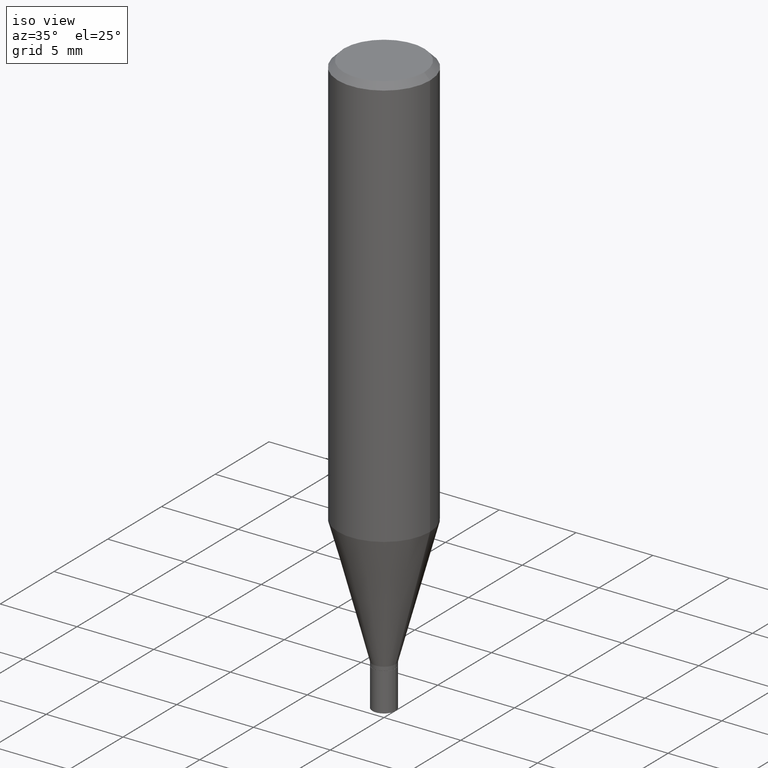
[diagram: clean part render]
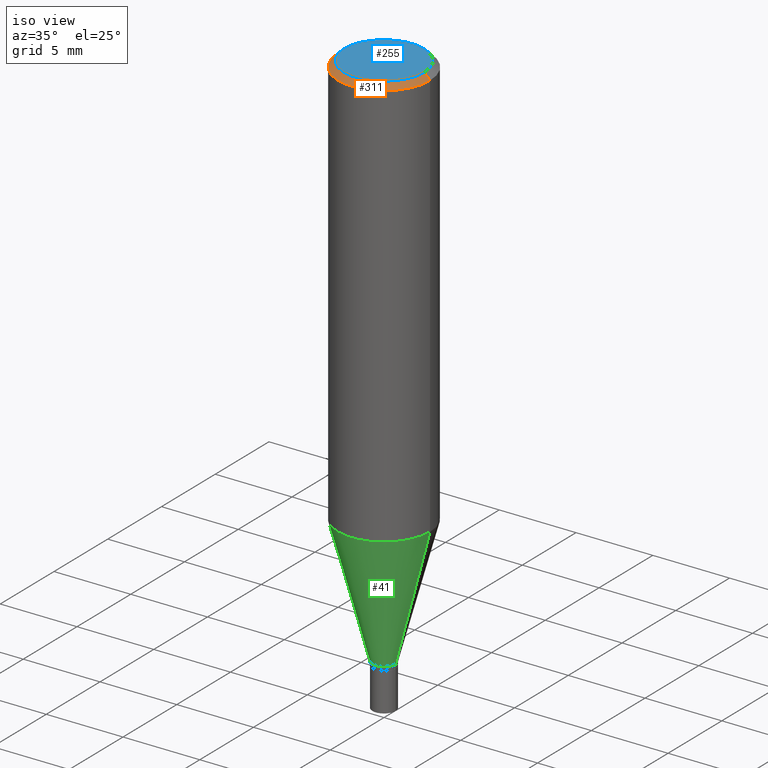
[diagram: same view with three faces highlighted in distinct colors, each labeled with its STEP entity id]
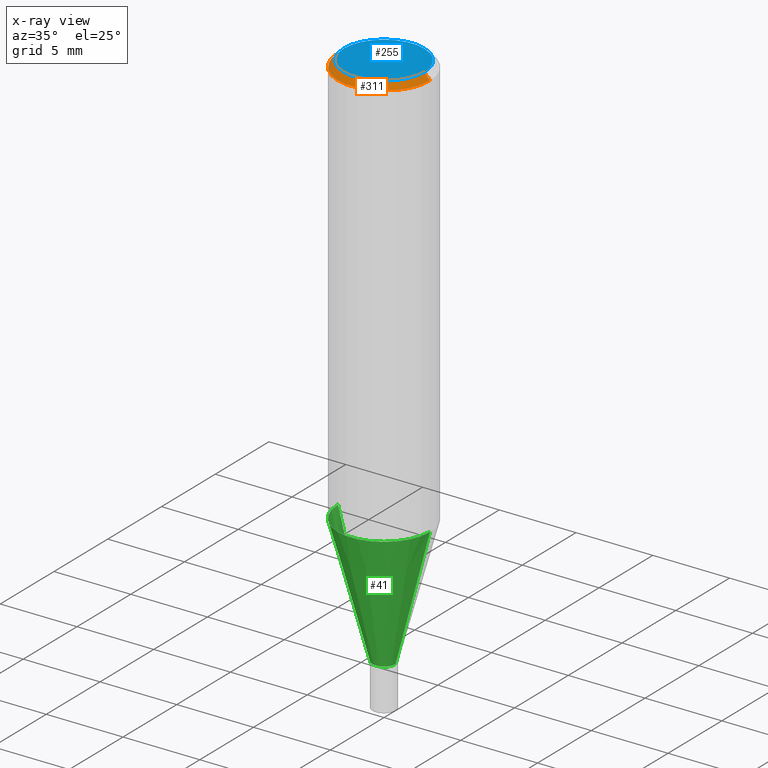
[diagram: x-ray of the same camera — body ghosted, the three highlighted faces saturated]
A machine part, iso view with three faces highlighted in distinct colors.
The next image is the same camera in x-ray (body ghosted, the three faces saturated) — at least one of them is partly hidden behind the body in this view.
Their STEP definitions:

[orange] entity #311 — the highlighted conical surface has half-angle 45 deg.
#8 = AXIS2_PLACEMENT_3D ( 'NONE', #354, #274, #164 ) ;
#9 = ORIENTED_EDGE ( 'NONE', *, *, #404, .T. ) ;
#10 = CARTESIAN_POINT ( 'NONE',  ( -0.1180999999999999966, -1.039487525583773150E-15, -0.01499999999999999944 ) ) ;
#14 = CARTESIAN_POINT ( 'NONE',  ( 0.1031000000000000111, -7.849571885948555664E-16, -2.607001550058841606E-16 ) ) ;
#29 = ORIENTED_EDGE ( 'NONE', *, *, #304, .F. ) ;
#67 = VECTOR ( 'NONE', #100, 39.37007874015748143 ) ;
#85 = VERTEX_POINT ( 'NONE', #14 ) ;
#98 = CARTESIAN_POINT ( 'NONE',  ( 3.668203209277705088E-31, -5.237222008264718399E-17, -0.01499999999999999944 ) ) ;
#99 = ORIENTED_EDGE ( 'NONE', *, *, #262, .F. ) ;
#100 = DIRECTION ( 'NONE',  ( -0.7071067811865535679, 2.468850131082320169E-15, -0.7071067811865414665 ) ) ;
#132 = LINE ( 'NONE', #432, #67 ) ;
#134 = AXIS2_PLACEMENT_3D ( 'NONE', #98, #314, #272 ) ;
#135 = LINE ( 'NONE', #306, #225 ) ;
#148 = DIRECTION ( 'NONE',  ( -2.445468806185136597E-29, 3.491481338843145583E-15, 1.000000000000000000 ) ) ;
#161 = EDGE_CURVE ( 'NONE', #336, #237, #187, .T. ) ;
#164 = DIRECTION ( 'NONE',  ( 1.000000000000000000, -6.982962677686265922E-15, 4.883331232093008327E-29 ) ) ;
#185 = CONICAL_SURFACE ( 'NONE', #134, 0.1180999999999999966, 0.7853981633974568277 ) ;
#187 = CIRCLE ( 'NONE', #290, 0.1180999999999999966 ) ;
#194 = CIRCLE ( 'NONE', #8, 0.1031000000000000111 ) ;
#197 = ORIENTED_EDGE ( 'NONE', *, *, #161, .T. ) ;
#209 = VERTEX_POINT ( 'NONE', #409 ) ;
#225 = VECTOR ( 'NONE', #282, 39.37007874015748143 ) ;
#228 = CARTESIAN_POINT ( 'NONE',  ( 3.668203209277705088E-31, -5.237222008264718399E-17, -0.01499999999999999944 ) ) ;
#237 = VERTEX_POINT ( 'NONE', #385 ) ;
#244 = EDGE_LOOP ( 'NONE', ( #99, #29, #9, #197 ) ) ;
#262 = EDGE_CURVE ( 'NONE', #85, #237, #135, .T. ) ;
#272 = DIRECTION ( 'NONE',  ( -1.000000000000000000, 6.982962677686266711E-15, 0.000000000000000000 ) ) ;
#274 = DIRECTION ( 'NONE',  ( -2.445468806185136597E-29, 3.491481338843145583E-15, 1.000000000000000000 ) ) ;
#282 = DIRECTION ( 'NONE',  ( 0.7071067811865535679, -7.319954787623276556E-15, -0.7071067811865414665 ) ) ;
#290 = AXIS2_PLACEMENT_3D ( 'NONE', #228, #148, #377 ) ;
#304 = EDGE_CURVE ( 'NONE', #209, #85, #194, .T. ) ;
#306 = CARTESIAN_POINT ( 'NONE',  ( 0.1180999999999999966, -8.625970336194650129E-16, -0.01499999999999999944 ) ) ;
#311 = ADVANCED_FACE ( 'NONE', ( #423 ), #185, .T. ) ;
#314 = DIRECTION ( 'NONE',  ( 2.445468806185136597E-29, -3.491481338843145583E-15, -1.000000000000000000 ) ) ;
#336 = VERTEX_POINT ( 'NONE', #10 ) ;
#354 = CARTESIAN_POINT ( 'NONE',  ( 6.375340968345323889E-45, -9.102297262365781992E-31, -2.607001550058893868E-16 ) ) ;
#377 = DIRECTION ( 'NONE',  ( 1.000000000000000000, -6.982962677686266711E-15, 0.000000000000000000 ) ) ;
#385 = CARTESIAN_POINT ( 'NONE',  ( 0.1180999999999999966, -8.770601123173952432E-16, -0.01499999999999999944 ) ) ;
#404 = EDGE_CURVE ( 'NONE', #209, #336, #132, .T. ) ;
#409 = CARTESIAN_POINT ( 'NONE',  ( -0.1031000000000000111, 7.461295621107770521E-16, -2.607001550058945144E-16 ) ) ;
#423 = FACE_OUTER_BOUND ( 'NONE', #244, .T. ) ;
#432 = CARTESIAN_POINT ( 'NONE',  ( -0.1180999999999999966, 7.723156721521009862E-16, -0.01499999999999999944 ) ) ;

[blue] entity #255 — the highlighted planar face has unit normal (0, -0, -1).
#8 = AXIS2_PLACEMENT_3D ( 'NONE', #354, #274, #164 ) ;
#14 = CARTESIAN_POINT ( 'NONE',  ( 0.1031000000000000111, -7.849571885948555664E-16, -2.607001550058841606E-16 ) ) ;
#47 = DIRECTION ( 'NONE',  ( -2.445468806185136597E-29, 3.491481338843145583E-15, 1.000000000000000000 ) ) ;
#59 = DIRECTION ( 'NONE',  ( 1.000000000000000000, -6.982962677686265922E-15, 4.883331232093008327E-29 ) ) ;
#75 = CARTESIAN_POINT ( 'NONE',  ( 6.375340968345323889E-45, -9.102297262365781992E-31, -2.607001550058893868E-16 ) ) ;
#84 = PLANE ( 'NONE',  #159 ) ;
#85 = VERTEX_POINT ( 'NONE', #14 ) ;
#154 = DIRECTION ( 'NONE',  ( -1.000000000000000000, 6.982962677686265922E-15, -4.876176775795935793E-29 ) ) ;
#159 = AXIS2_PLACEMENT_3D ( 'NONE', #232, #312, #154 ) ;
#164 = DIRECTION ( 'NONE',  ( 1.000000000000000000, -6.982962677686265922E-15, 4.883331232093008327E-29 ) ) ;
#194 = CIRCLE ( 'NONE', #8, 0.1031000000000000111 ) ;
#202 = FACE_OUTER_BOUND ( 'NONE', #347, .T. ) ;
#209 = VERTEX_POINT ( 'NONE', #409 ) ;
#212 = EDGE_CURVE ( 'NONE', #85, #209, #331, .T. ) ;
#218 = ORIENTED_EDGE ( 'NONE', *, *, #304, .T. ) ;
#232 = CARTESIAN_POINT ( 'NONE',  ( 7.199434520694541042E-16, 0.1031000000000000111, -4.903218035376729781E-16 ) ) ;
#254 = AXIS2_PLACEMENT_3D ( 'NONE', #75, #47, #59 ) ;
#255 = ADVANCED_FACE ( 'NONE', ( #202 ), #84, .F. ) ;
#274 = DIRECTION ( 'NONE',  ( -2.445468806185136597E-29, 3.491481338843145583E-15, 1.000000000000000000 ) ) ;
#304 = EDGE_CURVE ( 'NONE', #209, #85, #194, .T. ) ;
#312 = DIRECTION ( 'NONE',  ( 2.438088387897960049E-29, -3.491481338843145188E-15, -1.000000000000000000 ) ) ;
#331 = CIRCLE ( 'NONE', #254, 0.1031000000000000111 ) ;
#347 = EDGE_LOOP ( 'NONE', ( #218, #355 ) ) ;
#354 = CARTESIAN_POINT ( 'NONE',  ( 6.375340968345323889E-45, -9.102297262365781992E-31, -2.607001550058893868E-16 ) ) ;
#355 = ORIENTED_EDGE ( 'NONE', *, *, #212, .T. ) ;
#409 = CARTESIAN_POINT ( 'NONE',  ( -0.1031000000000000111, 7.461295621107770521E-16, -2.607001550058945144E-16 ) ) ;

[green] entity #41 — the highlighted conical surface has half-angle 15 deg.
#1 = CIRCLE ( 'NONE', #4, 0.1180999999999999966 ) ;
#4 = AXIS2_PLACEMENT_3D ( 'NONE', #219, #120, #305 ) ;
#6 = DIRECTION ( 'NONE',  ( -2.445468806185136597E-29, 3.491481338843145583E-15, 1.000000000000000000 ) ) ;
#11 = CARTESIAN_POINT ( 'NONE',  ( 0.02954999999999937191, -5.065091978259746092E-15, -1.391599999999999948 ) ) ;
#24 = VERTEX_POINT ( 'NONE', #11 ) ;
#41 = ADVANCED_FACE ( 'NONE', ( #119 ), #400, .T. ) ;
#43 = CARTESIAN_POINT ( 'NONE',  ( 3.403114390687236206E-29, -4.858745431134121215E-15, -1.391599999999999948 ) ) ;
#51 = LINE ( 'NONE', #55, #104 ) ;
#55 = CARTESIAN_POINT ( 'NONE',  ( 0.02954999999999937191, -5.065091978259746092E-15, -1.391599999999999948 ) ) ;
#60 = ORIENTED_EDGE ( 'NONE', *, *, #124, .F. ) ;
#81 = DIRECTION ( 'NONE',  ( -0.2588190451025213501, 5.211531920934551042E-15, 0.9659258262890682012 ) ) ;
#104 = VECTOR ( 'NONE', #204, 39.37007874015747433 ) ;
#107 = AXIS2_PLACEMENT_3D ( 'NONE', #408, #222, #178 ) ;
#112 = CARTESIAN_POINT ( 'NONE',  ( -0.02954999999999937191, -3.757266927367296018E-15, -1.391599999999999948 ) ) ;
#119 = FACE_OUTER_BOUND ( 'NONE', #384, .T. ) ;
#120 = DIRECTION ( 'NONE',  ( -2.445468806185136597E-29, 3.491481338843145583E-15, 1.000000000000000000 ) ) ;
#124 = EDGE_CURVE ( 'NONE', #332, #441, #415, .T. ) ;
#133 = VECTOR ( 'NONE', #81, 39.37007874015747433 ) ;
#143 = EDGE_CURVE ( 'NONE', #441, #234, #1, .T. ) ;
#178 = DIRECTION ( 'NONE',  ( 1.000000000000000000, -6.982962677686279332E-15, 0.000000000000000000 ) ) ;
#189 = DIRECTION ( 'NONE',  ( 1.000000000000000000, -6.982962677686279332E-15, 0.000000000000000000 ) ) ;
#204 = DIRECTION ( 'NONE',  ( 0.2588190451025213501, 1.565188264969621968E-15, 0.9659258262890682012 ) ) ;
#206 = ORIENTED_EDGE ( 'NONE', *, *, #143, .F. ) ;
#219 = CARTESIAN_POINT ( 'NONE',  ( 2.594952735774397508E-29, -3.704904772950256010E-15, -1.061126900989774580 ) ) ;
#222 = DIRECTION ( 'NONE',  ( -2.445468806185136597E-29, 3.491481338843145583E-15, 1.000000000000000000 ) ) ;
#234 = VERTEX_POINT ( 'NONE', #393 ) ;
#240 = ORIENTED_EDGE ( 'NONE', *, *, #359, .T. ) ;
#245 = CARTESIAN_POINT ( 'NONE',  ( -0.1180999999999999689, -2.865753802017576629E-15, -1.061126900989774580 ) ) ;
#261 = CARTESIAN_POINT ( 'NONE',  ( -0.02954999999999937191, -4.648780052717015801E-15, -1.391599999999999948 ) ) ;
#279 = AXIS2_PLACEMENT_3D ( 'NONE', #43, #6, #189 ) ;
#305 = DIRECTION ( 'NONE',  ( 1.000000000000000000, -6.982962677686265133E-15, 0.000000000000000000 ) ) ;
#309 = CIRCLE ( 'NONE', #107, 0.02954999999999937191 ) ;
#332 = VERTEX_POINT ( 'NONE', #112 ) ;
#359 = EDGE_CURVE ( 'NONE', #332, #24, #309, .T. ) ;
#384 = EDGE_LOOP ( 'NONE', ( #60, #240, #394, #206 ) ) ;
#393 = CARTESIAN_POINT ( 'NONE',  ( 0.1180999999999999689, -4.529592665185003484E-15, -1.061126900989774580 ) ) ;
#394 = ORIENTED_EDGE ( 'NONE', *, *, #429, .T. ) ;
#400 = CONICAL_SURFACE ( 'NONE', #279, 0.02954999999999937191, 0.2617993877991500740 ) ;
#408 = CARTESIAN_POINT ( 'NONE',  ( 3.403114390687236206E-29, -4.858745431134121215E-15, -1.391599999999999948 ) ) ;
#415 = LINE ( 'NONE', #261, #133 ) ;
#429 = EDGE_CURVE ( 'NONE', #24, #234, #51, .T. ) ;
#441 = VERTEX_POINT ( 'NONE', #245 ) ;